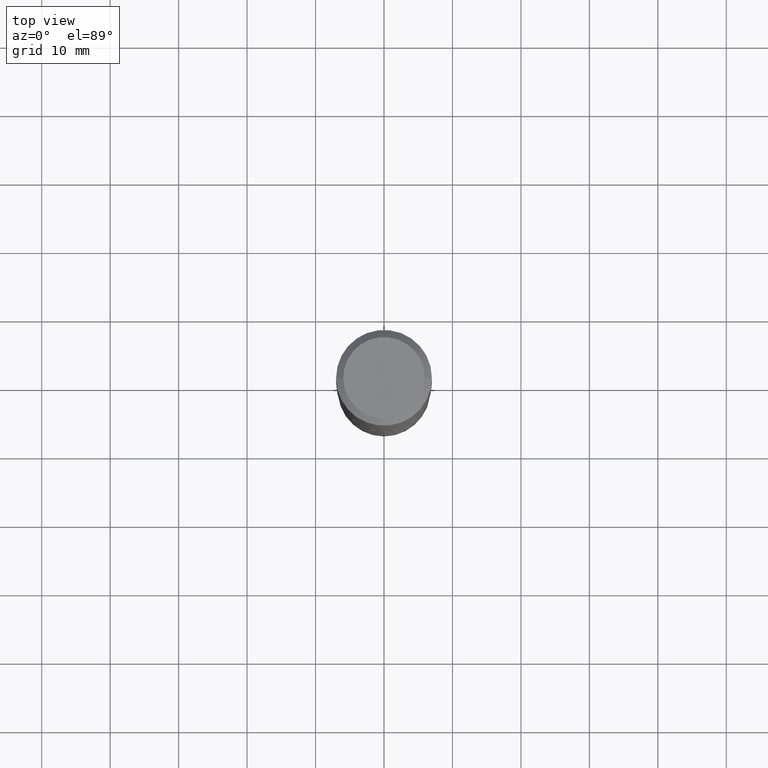
[diagram: clean part render]
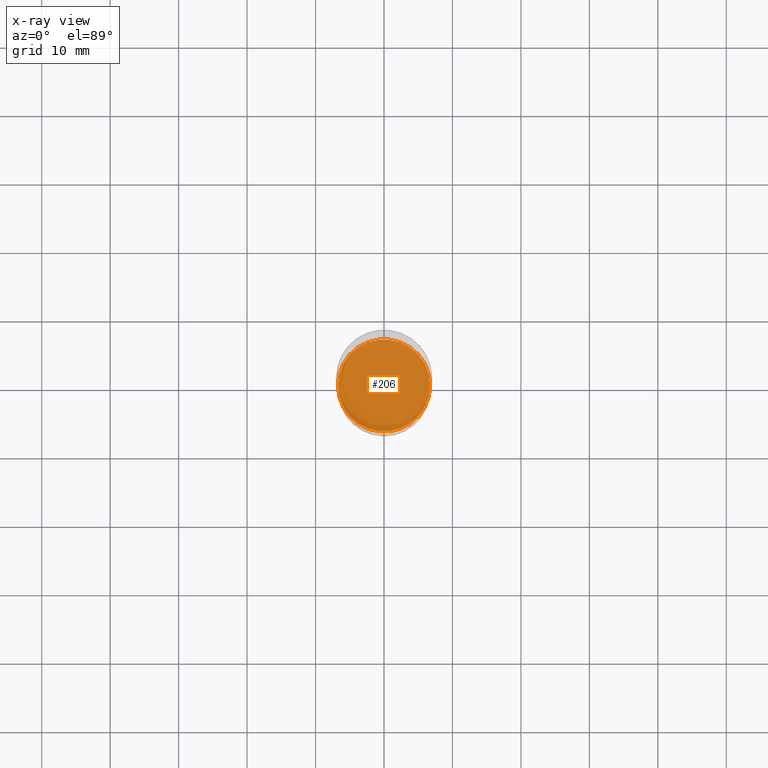
[diagram: x-ray — body ghosted, one internal face saturated and labeled with its STEP entity id]
A machine part, top view, then the same camera in x-ray: the body is ghosted and one INTERNAL B-rep face — a face not visible from any outside direction — is saturated and labeled: STEP entity #206.
In plain terms, the highlighted planar face has unit normal (-0, 0, 1).
Its self-contained STEP definition (entity closure, byte-faithful):
#11 = ORIENTED_EDGE ( 'NONE', *, *, #156, .F. ) ;
#15 = AXIS2_PLACEMENT_3D ( 'NONE', #186, #373, #223 ) ;
#81 = EDGE_LOOP ( 'NONE', ( #157, #11 ) ) ;
#115 = PLANE ( 'NONE',  #15 ) ;
#121 = FACE_OUTER_BOUND ( 'NONE', #81, .T. ) ;
#124 = CIRCLE ( 'NONE', #432, 0.2651000000000000023 ) ;
#136 = CIRCLE ( 'NONE', #397, 0.2651000000000000023 ) ;
#137 = DIRECTION ( 'NONE',  ( -2.445468806185136597E-29, 3.491481338843145583E-15, 1.000000000000000000 ) ) ;
#156 = EDGE_CURVE ( 'NONE', #401, #194, #136, .T. ) ;
#157 = ORIENTED_EDGE ( 'NONE', *, *, #454, .F. ) ;
#161 = DIRECTION ( 'NONE',  ( 1.000000000000000000, -6.982962677686265922E-15, 0.000000000000000000 ) ) ;
#186 = CARTESIAN_POINT ( 'NONE',  ( 6.345747005169811267E-29, -9.060044926164079731E-15, -2.594900000000000428 ) ) ;
#194 = VERTEX_POINT ( 'NONE', #301 ) ;
#195 = CARTESIAN_POINT ( 'NONE',  ( 6.345747005169811267E-29, -9.060044926164079731E-15, -2.594900000000000428 ) ) ;
#206 = ADVANCED_FACE ( 'NONE', ( #121 ), #115, .F. ) ;
#213 = DIRECTION ( 'NONE',  ( 1.000000000000000000, -6.982962677686265922E-15, 0.000000000000000000 ) ) ;
#223 = DIRECTION ( 'NONE',  ( 1.000000000000000000, -6.982962677686265922E-15, 4.876176775795935793E-29 ) ) ;
#301 = CARTESIAN_POINT ( 'NONE',  ( 0.2651000000000000023, -1.091122833201870838E-14, -2.594900000000000428 ) ) ;
#373 = DIRECTION ( 'NONE',  ( -2.438088387897960049E-29, 3.491481338843145188E-15, 1.000000000000000000 ) ) ;
#397 = AXIS2_PLACEMENT_3D ( 'NONE', #195, #435, #161 ) ;
#401 = VERTEX_POINT ( 'NONE', #444 ) ;
#432 = AXIS2_PLACEMENT_3D ( 'NONE', #451, #137, #213 ) ;
#435 = DIRECTION ( 'NONE',  ( -2.445468806185136597E-29, 3.491481338843145583E-15, 1.000000000000000000 ) ) ;
#444 = CARTESIAN_POINT ( 'NONE',  ( -0.2651000000000000023, -7.173746906489942920E-15, -2.594900000000000428 ) ) ;
#451 = CARTESIAN_POINT ( 'NONE',  ( 6.345747005169811267E-29, -9.060044926164079731E-15, -2.594900000000000428 ) ) ;
#454 = EDGE_CURVE ( 'NONE', #194, #401, #124, .T. ) ;